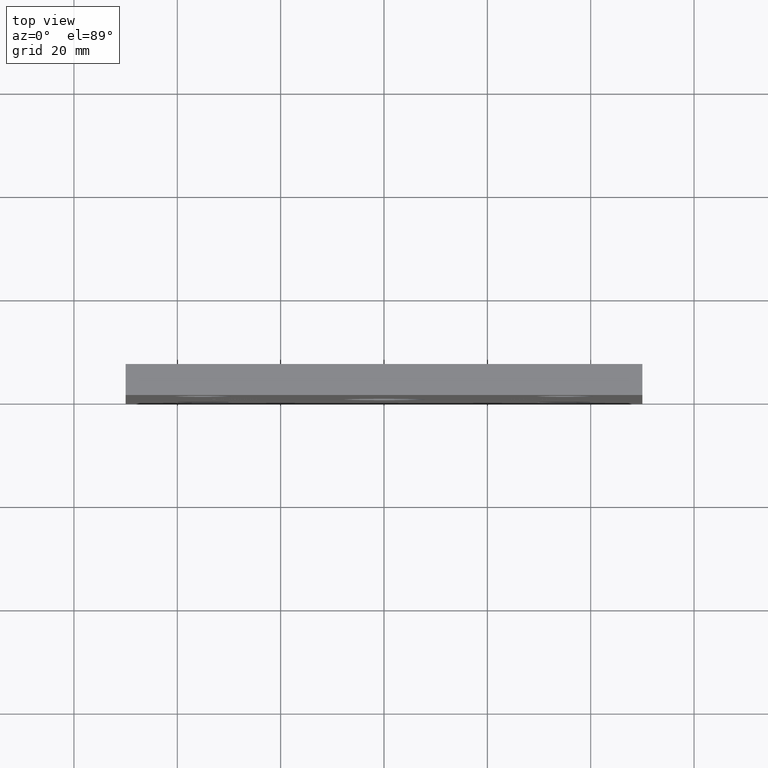
[diagram: clean part render]
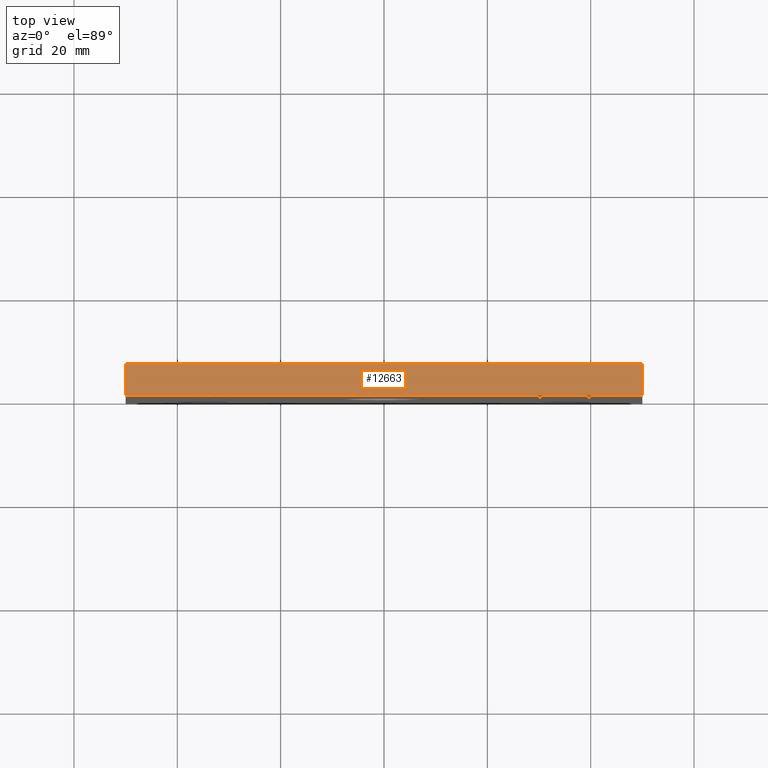
[diagram: same view with one face highlighted and labeled with its STEP entity id]
A machine part, top view. The second image highlights one B-rep face of the part: STEP entity #12663.
In plain terms, the highlighted planar face has unit normal (0, 0, -1).
Its self-contained STEP definition (entity closure, byte-faithful):
#118 = VERTEX_POINT ( 'NONE', #5814 ) ;
#152 = LINE ( 'NONE', #9663, #9934 ) ;
#1164 = VECTOR ( 'NONE', #3817, 1000.000000000000000 ) ;
#1360 = EDGE_LOOP ( 'NONE', ( #8196, #7698, #3508, #11275 ) ) ;
#1419 = VERTEX_POINT ( 'NONE', #8011 ) ;
#1835 = VECTOR ( 'NONE', #7074, 1000.000000000000000 ) ;
#2715 = DIRECTION ( 'NONE',  ( -1.000000000000000000, 0.000000000000000000, -0.000000000000000000 ) ) ;
#3027 = EDGE_CURVE ( 'NONE', #8067, #118, #9637, .T. ) ;
#3336 = EDGE_CURVE ( 'NONE', #6769, #118, #152, .T. ) ;
#3508 = ORIENTED_EDGE ( 'NONE', *, *, #6676, .F. ) ;
#3817 = DIRECTION ( 'NONE',  ( 1.000000000000000000, 0.000000000000000000, 0.000000000000000000 ) ) ;
#5346 = CARTESIAN_POINT ( 'NONE',  ( -49.99999999999998579, 6.000000000000000000, 50.00000000000000000 ) ) ;
#5588 = DIRECTION ( 'NONE',  ( 0.000000000000000000, 0.000000000000000000, -1.000000000000000000 ) ) ;
#5756 = DIRECTION ( 'NONE',  ( -0.000000000000000000, -1.000000000000000000, -0.000000000000000000 ) ) ;
#5814 = CARTESIAN_POINT ( 'NONE',  ( 50.00000000000000711, 0.000000000000000000, 50.00000000000000000 ) ) ;
#6309 = CARTESIAN_POINT ( 'NONE',  ( -49.99999999999998579, 0.000000000000000000, 50.00000000000000000 ) ) ;
#6676 = EDGE_CURVE ( 'NONE', #1419, #6769, #8651, .T. ) ;
#6769 = VERTEX_POINT ( 'NONE', #9947 ) ;
#7074 = DIRECTION ( 'NONE',  ( 1.000000000000000000, 0.000000000000000000, 0.000000000000000000 ) ) ;
#7408 = EDGE_CURVE ( 'NONE', #1419, #8067, #8342, .T. ) ;
#7698 = ORIENTED_EDGE ( 'NONE', *, *, #3336, .F. ) ;
#8011 = CARTESIAN_POINT ( 'NONE',  ( -49.99999999999998579, 6.000000000000000000, 50.00000000000000000 ) ) ;
#8067 = VERTEX_POINT ( 'NONE', #6309 ) ;
#8196 = ORIENTED_EDGE ( 'NONE', *, *, #3027, .T. ) ;
#8342 = LINE ( 'NONE', #5346, #11557 ) ;
#8651 = LINE ( 'NONE', #9664, #1164 ) ;
#9637 = LINE ( 'NONE', #10195, #1835 ) ;
#9663 = CARTESIAN_POINT ( 'NONE',  ( 50.00000000000000711, 6.000000000000000000, 50.00000000000000000 ) ) ;
#9664 = CARTESIAN_POINT ( 'NONE',  ( -49.99999999999998579, 6.000000000000000000, 50.00000000000000000 ) ) ;
#9934 = VECTOR ( 'NONE', #5756, 1000.000000000000000 ) ;
#9947 = CARTESIAN_POINT ( 'NONE',  ( 50.00000000000000711, 6.000000000000000000, 50.00000000000000000 ) ) ;
#10195 = CARTESIAN_POINT ( 'NONE',  ( -49.99999999999998579, 0.000000000000000000, 50.00000000000000000 ) ) ;
#10546 = AXIS2_PLACEMENT_3D ( 'NONE', #11453, #5588, #2715 ) ;
#11056 = FACE_OUTER_BOUND ( 'NONE', #1360, .T. ) ;
#11275 = ORIENTED_EDGE ( 'NONE', *, *, #7408, .T. ) ;
#11406 = DIRECTION ( 'NONE',  ( -0.000000000000000000, -1.000000000000000000, -0.000000000000000000 ) ) ;
#11453 = CARTESIAN_POINT ( 'NONE',  ( -49.99999999999998579, 6.000000000000000000, 50.00000000000000000 ) ) ;
#11532 = PLANE ( 'NONE',  #10546 ) ;
#11557 = VECTOR ( 'NONE', #11406, 1000.000000000000000 ) ;
#12663 = ADVANCED_FACE ( 'NONE', ( #11056 ), #11532, .F. ) ;